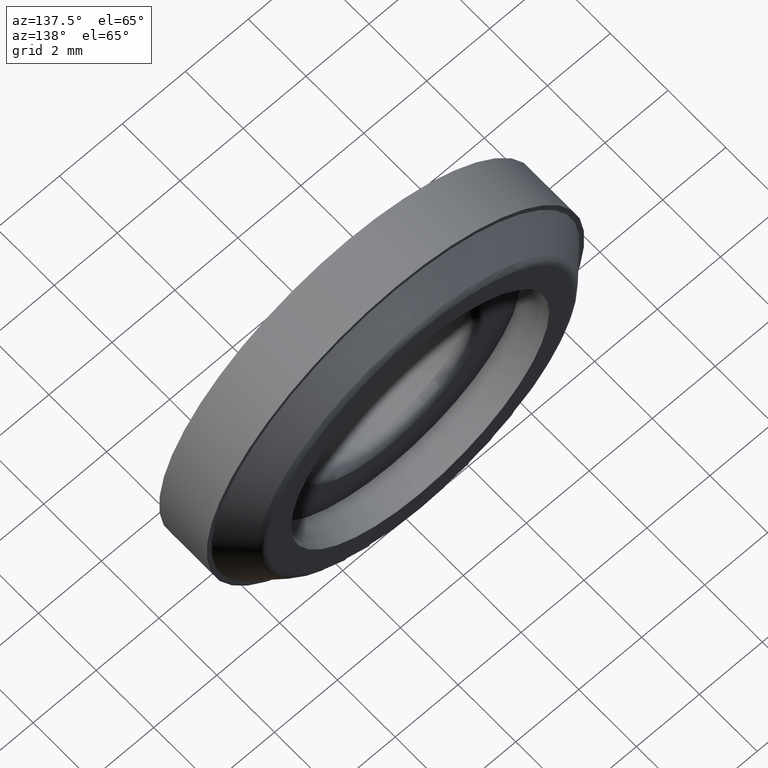
[diagram: clean part render]
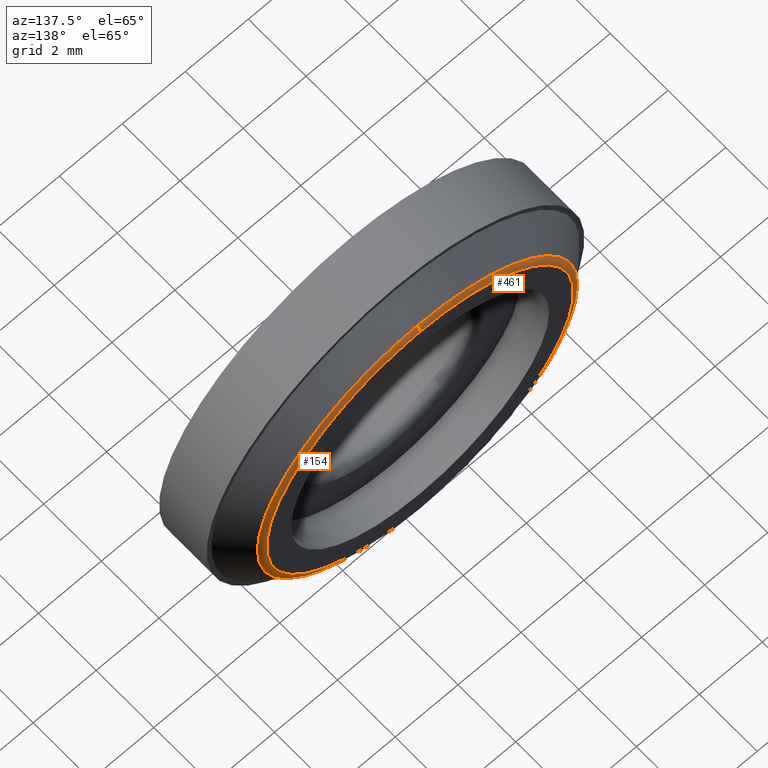
[diagram: same view with one multi-face feature highlighted, each face labeled with its STEP entity id]
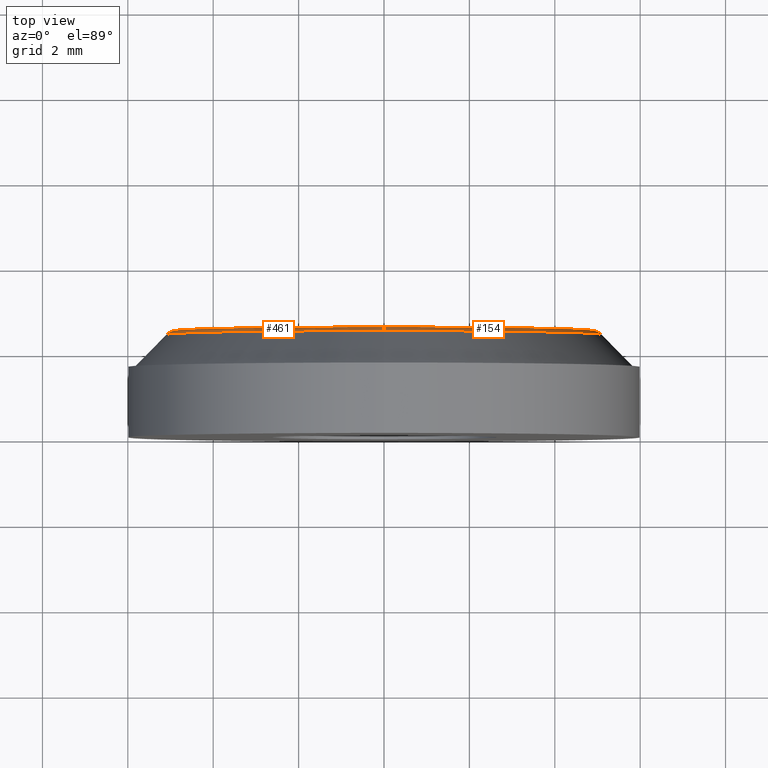
[diagram: same view with one multi-face feature highlighted, each face labeled with its STEP entity id]
A machine part, auxiliary view. The highlighted faces form ONE feature: a constant-radius fillet chain: 2 tangent blend faces with common blend radius 0.3 mm. The faces share edges in the B-rep.
A second angle (top view) of the same feature is appended — it is thin or edge-on in the first view.
Their STEP definitions:
[1] entity #461 (Torus):
#1 = CARTESIAN_POINT ( 'NONE',  ( 0.0000000000000000000, 2.500000000000000000, 0.0000000000000000000 ) ) ;
#2 = DIRECTION ( 'NONE',  ( 0.0000000000000000000, 1.000000000000000000, 0.0000000000000000000 ) ) ;
#8 = DIRECTION ( 'NONE',  ( 0.0000000000000000000, 0.0000000000000000000, -1.000000000000000000 ) ) ;
#13 = VERTEX_POINT ( 'NONE', #41 ) ;
#22 = AXIS2_PLACEMENT_3D ( 'NONE', #1, #282, #329 ) ;
#34 = TOROIDAL_SURFACE ( 'NONE', #149, 4.875735931288076600, 0.2999999999999999900 ) ;
#41 = CARTESIAN_POINT ( 'NONE',  ( 6.697512496811174300E-016, 2.412132034355963100, 5.087867965644041300 ) ) ;
#46 = EDGE_CURVE ( 'NONE', #13, #104, #255, .T. ) ;
#82 = CARTESIAN_POINT ( 'NONE',  ( 0.0000000000000000000, 2.412132034355963100, 0.0000000000000000000 ) ) ;
#98 = AXIS2_PLACEMENT_3D ( 'NONE', #474, #236, #390 ) ;
#104 = VERTEX_POINT ( 'NONE', #123 ) ;
#110 = DIRECTION ( 'NONE',  ( 0.0000000000000000000, 0.0000000000000000000, 1.000000000000000000 ) ) ;
#123 = CARTESIAN_POINT ( 'NONE',  ( 0.0000000000000000000, 2.412132034355963100, -5.087867965644041300 ) ) ;
#134 = EDGE_CURVE ( 'NONE', #319, #448, #343, .T. ) ;
#149 = AXIS2_PLACEMENT_3D ( 'NONE', #446, #2, #110 ) ;
#190 = EDGE_CURVE ( 'NONE', #13, #448, #304, .T. ) ;
#219 = FACE_OUTER_BOUND ( 'NONE', #260, .T. ) ;
#221 = ORIENTED_EDGE ( 'NONE', *, *, #134, .F. ) ;
#236 = DIRECTION ( 'NONE',  ( -1.000000000000000000, 0.0000000000000000000, 0.0000000000000000000 ) ) ;
#248 = CARTESIAN_POINT ( 'NONE',  ( 0.0000000000000000000, 2.500000000000000000, 4.875735931288076600 ) ) ;
#255 = CIRCLE ( 'NONE', #309, 5.087867965644041300 ) ;
#260 = EDGE_LOOP ( 'NONE', ( #421, #379, #455, #221 ) ) ;
#282 = DIRECTION ( 'NONE',  ( 0.0000000000000000000, 1.000000000000000000, 0.0000000000000000000 ) ) ;
#304 = CIRCLE ( 'NONE', #98, 0.2999999999999999300 ) ;
#309 = AXIS2_PLACEMENT_3D ( 'NONE', #82, #339, #8 ) ;
#319 = VERTEX_POINT ( 'NONE', #412 ) ;
#329 = DIRECTION ( 'NONE',  ( 0.0000000000000000000, 0.0000000000000000000, 1.000000000000000000 ) ) ;
#339 = DIRECTION ( 'NONE',  ( 0.0000000000000000000, -1.000000000000000000, 0.0000000000000000000 ) ) ;
#343 = CIRCLE ( 'NONE', #22, 4.875735931288076600 ) ;
#379 = ORIENTED_EDGE ( 'NONE', *, *, #46, .F. ) ;
#380 = EDGE_CURVE ( 'NONE', #104, #319, #414, .T. ) ;
#390 = DIRECTION ( 'NONE',  ( 0.0000000000000000000, 0.0000000000000000000, 1.000000000000000000 ) ) ;
#406 = CARTESIAN_POINT ( 'NONE',  ( 5.971054401739682700E-016, 2.200000000000000200, -4.875735931288076600 ) ) ;
#412 = CARTESIAN_POINT ( 'NONE',  ( 6.100947810175008500E-016, 2.500000000000000000, -4.875735931288076600 ) ) ;
#414 = CIRCLE ( 'NONE', #484, 0.2999999999999999300 ) ;
#421 = ORIENTED_EDGE ( 'NONE', *, *, #380, .F. ) ;
#446 = CARTESIAN_POINT ( 'NONE',  ( 0.0000000000000000000, 2.200000000000000200, 0.0000000000000000000 ) ) ;
#448 = VERTEX_POINT ( 'NONE', #248 ) ;
#455 = ORIENTED_EDGE ( 'NONE', *, *, #190, .T. ) ;
#461 = ADVANCED_FACE ( 'NONE', ( #219 ), #34, .T. ) ;
#474 = CARTESIAN_POINT ( 'NONE',  ( 0.0000000000000000000, 2.200000000000000200, 4.875735931288076600 ) ) ;
#484 = AXIS2_PLACEMENT_3D ( 'NONE', #406, #502, #507 ) ;
#502 = DIRECTION ( 'NONE',  ( 1.000000000000000000, -0.0000000000000000000, 1.224646799147353200E-016 ) ) ;
#507 = DIRECTION ( 'NONE',  ( 1.224646799147353200E-016, 0.0000000000000000000, -1.000000000000000000 ) ) ;
[2] entity #154 (Torus):
#13 = VERTEX_POINT ( 'NONE', #41 ) ;
#14 = EDGE_CURVE ( 'NONE', #104, #13, #141, .T. ) ;
#41 = CARTESIAN_POINT ( 'NONE',  ( 6.697512496811174300E-016, 2.412132034355963100, 5.087867965644041300 ) ) ;
#42 = EDGE_CURVE ( 'NONE', #448, #319, #363, .T. ) ;
#74 = ORIENTED_EDGE ( 'NONE', *, *, #380, .T. ) ;
#98 = AXIS2_PLACEMENT_3D ( 'NONE', #474, #236, #390 ) ;
#104 = VERTEX_POINT ( 'NONE', #123 ) ;
#119 = DIRECTION ( 'NONE',  ( 0.0000000000000000000, 1.000000000000000000, 0.0000000000000000000 ) ) ;
#123 = CARTESIAN_POINT ( 'NONE',  ( 0.0000000000000000000, 2.412132034355963100, -5.087867965644041300 ) ) ;
#124 = AXIS2_PLACEMENT_3D ( 'NONE', #251, #447, #480 ) ;
#136 = AXIS2_PLACEMENT_3D ( 'NONE', #279, #119, #239 ) ;
#141 = CIRCLE ( 'NONE', #293, 5.087867965644041300 ) ;
#154 = ADVANCED_FACE ( 'NONE', ( #183 ), #403, .T. ) ;
#183 = FACE_OUTER_BOUND ( 'NONE', #350, .T. ) ;
#190 = EDGE_CURVE ( 'NONE', #13, #448, #304, .T. ) ;
#204 = ORIENTED_EDGE ( 'NONE', *, *, #14, .F. ) ;
#236 = DIRECTION ( 'NONE',  ( -1.000000000000000000, 0.0000000000000000000, 0.0000000000000000000 ) ) ;
#239 = DIRECTION ( 'NONE',  ( 0.0000000000000000000, 0.0000000000000000000, 1.000000000000000000 ) ) ;
#248 = CARTESIAN_POINT ( 'NONE',  ( 0.0000000000000000000, 2.500000000000000000, 4.875735931288076600 ) ) ;
#251 = CARTESIAN_POINT ( 'NONE',  ( 0.0000000000000000000, 2.500000000000000000, 0.0000000000000000000 ) ) ;
#257 = ORIENTED_EDGE ( 'NONE', *, *, #190, .F. ) ;
#279 = CARTESIAN_POINT ( 'NONE',  ( 0.0000000000000000000, 2.200000000000000200, 0.0000000000000000000 ) ) ;
#293 = AXIS2_PLACEMENT_3D ( 'NONE', #409, #466, #336 ) ;
#304 = CIRCLE ( 'NONE', #98, 0.2999999999999999300 ) ;
#319 = VERTEX_POINT ( 'NONE', #412 ) ;
#336 = DIRECTION ( 'NONE',  ( 0.0000000000000000000, 0.0000000000000000000, -1.000000000000000000 ) ) ;
#350 = EDGE_LOOP ( 'NONE', ( #204, #74, #420, #257 ) ) ;
#363 = CIRCLE ( 'NONE', #124, 4.875735931288076600 ) ;
#380 = EDGE_CURVE ( 'NONE', #104, #319, #414, .T. ) ;
#390 = DIRECTION ( 'NONE',  ( 0.0000000000000000000, 0.0000000000000000000, 1.000000000000000000 ) ) ;
#403 = TOROIDAL_SURFACE ( 'NONE', #136, 4.875735931288076600, 0.2999999999999999900 ) ;
#406 = CARTESIAN_POINT ( 'NONE',  ( 5.971054401739682700E-016, 2.200000000000000200, -4.875735931288076600 ) ) ;
#409 = CARTESIAN_POINT ( 'NONE',  ( 0.0000000000000000000, 2.412132034355963100, 0.0000000000000000000 ) ) ;
#412 = CARTESIAN_POINT ( 'NONE',  ( 6.100947810175008500E-016, 2.500000000000000000, -4.875735931288076600 ) ) ;
#414 = CIRCLE ( 'NONE', #484, 0.2999999999999999300 ) ;
#420 = ORIENTED_EDGE ( 'NONE', *, *, #42, .F. ) ;
#447 = DIRECTION ( 'NONE',  ( 0.0000000000000000000, 1.000000000000000000, 0.0000000000000000000 ) ) ;
#448 = VERTEX_POINT ( 'NONE', #248 ) ;
#466 = DIRECTION ( 'NONE',  ( 0.0000000000000000000, -1.000000000000000000, 0.0000000000000000000 ) ) ;
#474 = CARTESIAN_POINT ( 'NONE',  ( 0.0000000000000000000, 2.200000000000000200, 4.875735931288076600 ) ) ;
#480 = DIRECTION ( 'NONE',  ( 0.0000000000000000000, 0.0000000000000000000, 1.000000000000000000 ) ) ;
#484 = AXIS2_PLACEMENT_3D ( 'NONE', #406, #502, #507 ) ;
#502 = DIRECTION ( 'NONE',  ( 1.000000000000000000, -0.0000000000000000000, 1.224646799147353200E-016 ) ) ;
#507 = DIRECTION ( 'NONE',  ( 1.224646799147353200E-016, 0.0000000000000000000, -1.000000000000000000 ) ) ;